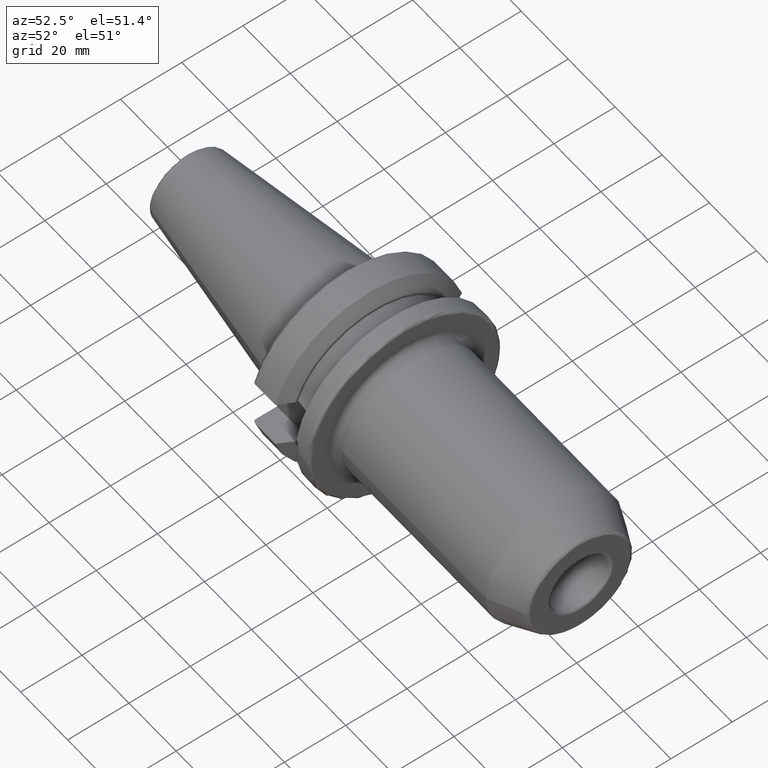
[diagram: clean part render]
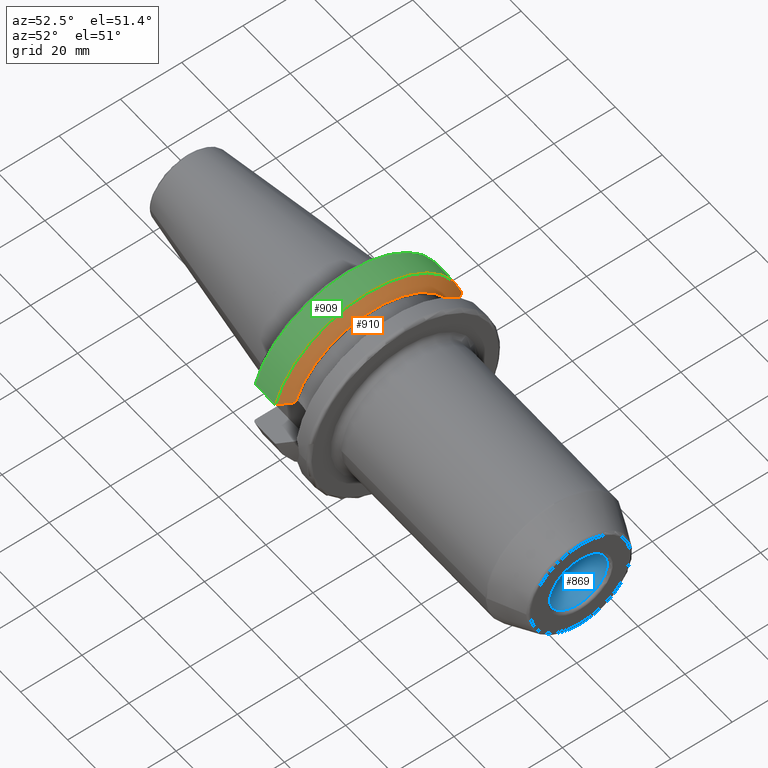
[diagram: same view with three faces highlighted in distinct colors, each labeled with its STEP entity id]
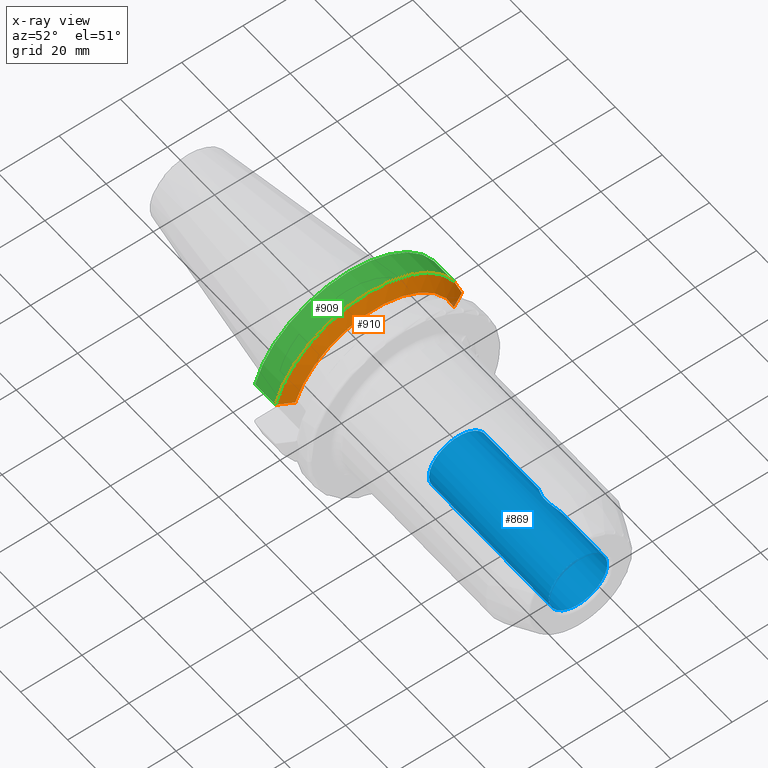
[diagram: x-ray of the same camera — body ghosted, the three highlighted faces saturated]
A machine part, auxiliary view with three faces highlighted in distinct colors.
The next image is the same camera in x-ray (body ghosted, the three faces saturated) — at least one of them is partly hidden behind the body in this view.
Their STEP definitions:

[orange] entity #910 — the highlighted conical surface has half-angle 60.125 deg.
#15=(
BOUNDED_CURVE()
B_SPLINE_CURVE(2,(#1571,#1572,#1573),.UNSPECIFIED.,.F.,.F.)
B_SPLINE_CURVE_WITH_KNOTS((3,3),(0.,0.52358279083281),.UNSPECIFIED.)
CURVE()
GEOMETRIC_REPRESENTATION_ITEM()
RATIONAL_B_SPLINE_CURVE((1.,1.00307360097546,1.))
REPRESENTATION_ITEM('')
);
#18=(
BOUNDED_CURVE()
B_SPLINE_CURVE(2,(#1731,#1732,#1733),.UNSPECIFIED.,.F.,.F.)
B_SPLINE_CURVE_WITH_KNOTS((3,3),(0.,0.52358279083281),.UNSPECIFIED.)
CURVE()
GEOMETRIC_REPRESENTATION_ITEM()
RATIONAL_B_SPLINE_CURVE((1.,1.00307360097546,1.))
REPRESENTATION_ITEM('')
);
#27=CONICAL_SURFACE('',#1041,29.2970358274569,1.0493792127616);
#227=FACE_OUTER_BOUND('',#289,.T.);
#289=EDGE_LOOP('',(#812,#813,#814,#815));
#355=CIRCLE('',#1040,31.5000000000001);
#356=CIRCLE('',#1042,27.0940716549138);
#406=VERTEX_POINT('',#1568);
#407=VERTEX_POINT('',#1570);
#438=VERTEX_POINT('',#1728);
#439=VERTEX_POINT('',#1730);
#508=EDGE_CURVE('',#407,#406,#15,.T.);
#553=EDGE_CURVE('',#439,#438,#18,.T.);
#574=EDGE_CURVE('',#438,#407,#355,.T.);
#575=EDGE_CURVE('',#439,#406,#356,.T.);
#812=ORIENTED_EDGE('',*,*,#508,.T.);
#813=ORIENTED_EDGE('',*,*,#575,.F.);
#814=ORIENTED_EDGE('',*,*,#553,.T.);
#815=ORIENTED_EDGE('',*,*,#574,.T.);
#910=ADVANCED_FACE('',(#227),#27,.T.);
#1040=AXIS2_PLACEMENT_3D('',#1774,#1300,#1301);
#1041=AXIS2_PLACEMENT_3D('',#1775,#1302,#1303);
#1042=AXIS2_PLACEMENT_3D('',#1776,#1304,#1305);
#1300=DIRECTION('center_axis',(1.,0.,0.));
#1301=DIRECTION('ref_axis',(0.,0.,-1.));
#1302=DIRECTION('center_axis',(-1.,0.,0.));
#1303=DIRECTION('ref_axis',(0.,1.,0.));
#1304=DIRECTION('center_axis',(1.,0.,0.));
#1305=DIRECTION('ref_axis',(0.,0.,-1.));
#1568=CARTESIAN_POINT('',(14.1,-25.8705666509569,8.05));
#1570=CARTESIAN_POINT('',(11.5690363073382,-30.4540227227866,8.05));
#1571=CARTESIAN_POINT('Ctrl Pts',(11.5690363073382,-30.4540227227866,8.05));
#1572=CARTESIAN_POINT('Ctrl Pts',(12.9374976962938,-27.989970265181,8.05));
#1573=CARTESIAN_POINT('Ctrl Pts',(14.1,-25.8705666509569,8.05));
#1728=CARTESIAN_POINT('',(11.5690363073382,30.4540227227866,8.05));
#1730=CARTESIAN_POINT('',(14.1,25.8705666509569,8.05));
#1731=CARTESIAN_POINT('Ctrl Pts',(14.1,25.8705666509569,8.05));
#1732=CARTESIAN_POINT('Ctrl Pts',(12.9374976962938,27.989970265181,8.05));
#1733=CARTESIAN_POINT('Ctrl Pts',(11.5690363073382,30.4540227227866,8.05));
#1774=CARTESIAN_POINT('Origin',(11.5690363073382,0.,0.));
#1775=CARTESIAN_POINT('Origin',(12.8345181536691,0.,0.));
#1776=CARTESIAN_POINT('Origin',(14.1,0.,0.));

[blue] entity #869 — the highlighted cylindrical surface (bore or boss wall) has radius 9.525 mm, axis along (1, 0, 0).
#29=B_SPLINE_CURVE_WITH_KNOTS('',3,(#1367,#1368,#1369,#1370,#1371,#1372,
#1373,#1374,#1375,#1376,#1377,#1378),.UNSPECIFIED.,.F.,.F.,(4,2,2,2,2,4),
(0.,0.144698250998677,0.289396501997354,0.578793003994707,0.861943035234952,
1.1450930664752),.UNSPECIFIED.);
#30=B_SPLINE_CURVE_WITH_KNOTS('',3,(#1379,#1380,#1381,#1382,#1383,#1384,
#1385,#1386,#1387,#1388,#1389,#1390,#1391,#1392,#1393,#1394,#1395,#1396,
#1397,#1398,#1399,#1400,#1401,#1402,#1403,#1404,#1405,#1406,#1407,#1408,
#1409,#1410),.UNSPECIFIED.,.F.,.F.,(4,2,2,2,2,2,2,2,2,2,2,2,2,2,2,4),(1.1450930664752,
1.42824309771544,1.71139312895569,2.00078963095304,2.14548788195172,2.29018613295039,
2.43488438394907,2.57958263494775,2.8689791369451,3.15212916818535,3.43527919942559,
3.71842923066584,4.00157926190608,4.29097576390344,4.43567401490211,4.58037226590079),
 .UNSPECIFIED.);
#48=LINE('',#1363,#94);
#94=VECTOR('',#1081,9.52500000000001);
#140=CYLINDRICAL_SURFACE('',#951,9.52500000000001);
#157=FACE_BOUND('',#242,.T.);
#186=FACE_OUTER_BOUND('',#241,.T.);
#241=EDGE_LOOP('',(#596,#597,#598,#599,#600));
#242=EDGE_LOOP('',(#601,#602));
#302=CIRCLE('',#945,9.52500000000001);
#303=CIRCLE('',#946,9.52500000000001);
#307=CIRCLE('',#952,9.52500000000001);
#367=VERTEX_POINT('',#1351);
#368=VERTEX_POINT('',#1352);
#371=VERTEX_POINT('',#1362);
#372=VERTEX_POINT('',#1365);
#373=VERTEX_POINT('',#1366);
#455=EDGE_CURVE('',#367,#368,#302,.T.);
#456=EDGE_CURVE('',#368,#367,#303,.T.);
#460=EDGE_CURVE('',#368,#371,#48,.T.);
#461=EDGE_CURVE('',#371,#371,#307,.T.);
#462=EDGE_CURVE('',#372,#373,#29,.T.);
#463=EDGE_CURVE('',#373,#372,#30,.T.);
#596=ORIENTED_EDGE('',*,*,#455,.F.);
#597=ORIENTED_EDGE('',*,*,#456,.F.);
#598=ORIENTED_EDGE('',*,*,#460,.T.);
#599=ORIENTED_EDGE('',*,*,#461,.F.);
#600=ORIENTED_EDGE('',*,*,#460,.F.);
#601=ORIENTED_EDGE('',*,*,#462,.T.);
#602=ORIENTED_EDGE('',*,*,#463,.T.);
#869=ADVANCED_FACE('',(#186,#157),#140,.F.);
#945=AXIS2_PLACEMENT_3D('',#1353,#1067,#1068);
#946=AXIS2_PLACEMENT_3D('',#1354,#1069,#1070);
#951=AXIS2_PLACEMENT_3D('',#1361,#1079,#1080);
#952=AXIS2_PLACEMENT_3D('',#1364,#1082,#1083);
#1067=DIRECTION('center_axis',(-1.,0.,0.));
#1068=DIRECTION('ref_axis',(0.,-1.,1.83697019872103E-16));
#1069=DIRECTION('center_axis',(-1.,0.,0.));
#1070=DIRECTION('ref_axis',(0.,-1.,1.83697019872103E-16));
#1079=DIRECTION('center_axis',(1.,0.,0.));
#1080=DIRECTION('ref_axis',(0.,1.,0.));
#1081=DIRECTION('',(-1.,0.,0.));
#1082=DIRECTION('center_axis',(1.,0.,0.));
#1083=DIRECTION('ref_axis',(0.,0.,-1.));
#1351=CARTESIAN_POINT('',(100.6,-1.16647607618786E-15,9.52500000000001));
#1352=CARTESIAN_POINT('',(100.6,-9.52500000000001,-1.16647607618786E-15));
#1353=CARTESIAN_POINT('Origin',(100.6,0.,0.));
#1354=CARTESIAN_POINT('Origin',(100.6,0.,0.));
#1361=CARTESIAN_POINT('Origin',(75.6,0.,0.));
#1362=CARTESIAN_POINT('',(49.6,-9.52500000000001,-1.16647607618786E-15));
#1363=CARTESIAN_POINT('',(75.6,-9.52500000000001,-1.16647607618786E-15));
#1364=CARTESIAN_POINT('Origin',(49.6,0.,0.));
#1365=CARTESIAN_POINT('',(78.5,6.26401027697116,7.1755));
#1366=CARTESIAN_POINT('',(85.6755,9.52500000000001,-1.61816899207803E-16));
#1367=CARTESIAN_POINT('Ctrl Pts',(78.5,6.26401027697116,7.1755));
#1368=CARTESIAN_POINT('Ctrl Pts',(78.9823275033289,6.26401027697116,7.1755));
#1369=CARTESIAN_POINT('Ctrl Pts',(79.4661182135581,6.32143007161543,7.12639516897825));
#1370=CARTESIAN_POINT('Ctrl Pts',(80.4080798225057,6.53206413620661,6.93383906269396));
#1371=CARTESIAN_POINT('Ctrl Pts',(80.8664838378561,6.68433612256237,6.79049865656369));
#1372=CARTESIAN_POINT('Ctrl Pts',(82.1716722290303,7.21720628066743,6.23698013972661));
#1373=CARTESIAN_POINT('Ctrl Pts',(82.9506653156914,7.66888180360499,5.69702410111673));
#1374=CARTESIAN_POINT('Ctrl Pts',(84.1835731028284,8.44490043623811,4.46411631397973));
#1375=CARTESIAN_POINT('Ctrl Pts',(84.731535212332,8.83197757623816,3.68359990675616));
#1376=CARTESIAN_POINT('Ctrl Pts',(85.4783700807261,9.37387029886957,1.92439466781673));
#1377=CARTESIAN_POINT('Ctrl Pts',(85.6755,9.52500000000001,0.943833437467483));
#1378=CARTESIAN_POINT('Ctrl Pts',(85.6755,9.52500000000001,-1.38777878078145E-16));
#1379=CARTESIAN_POINT('Ctrl Pts',(85.6755,9.52500000000001,2.77555756156289E-16));
#1380=CARTESIAN_POINT('Ctrl Pts',(85.6755,9.52500000000001,-0.943833437467483));
#1381=CARTESIAN_POINT('Ctrl Pts',(85.4783700807261,9.37387029886957,-1.92439466781673));
#1382=CARTESIAN_POINT('Ctrl Pts',(84.731535212332,8.83197757623817,-3.68359990675616));
#1383=CARTESIAN_POINT('Ctrl Pts',(84.1835731028284,8.44490043623811,-4.46411631397973));
#1384=CARTESIAN_POINT('Ctrl Pts',(82.9506653156914,7.66888180360499,-5.69702410111673));
#1385=CARTESIAN_POINT('Ctrl Pts',(82.1716722290303,7.21720628066743,-6.2369801397266));
#1386=CARTESIAN_POINT('Ctrl Pts',(80.8664838378561,6.68433612256238,-6.79049865656369));
#1387=CARTESIAN_POINT('Ctrl Pts',(80.4080798225056,6.5320641362066,-6.93383906269396));
#1388=CARTESIAN_POINT('Ctrl Pts',(79.4661182135581,6.32143007161543,-7.12639516897826));
#1389=CARTESIAN_POINT('Ctrl Pts',(78.9823275033289,6.26401027697116,-7.1755));
#1390=CARTESIAN_POINT('Ctrl Pts',(78.0176724966711,6.26401027697116,-7.1755));
#1391=CARTESIAN_POINT('Ctrl Pts',(77.5338817864419,6.32143007161542,-7.12639516897826));
#1392=CARTESIAN_POINT('Ctrl Pts',(76.5919201774943,6.53206413620661,-6.93383906269396));
#1393=CARTESIAN_POINT('Ctrl Pts',(76.1335161621439,6.68433612256237,-6.79049865656369));
#1394=CARTESIAN_POINT('Ctrl Pts',(74.8283277709697,7.21720628066742,-6.23698013972661));
#1395=CARTESIAN_POINT('Ctrl Pts',(74.0493346843086,7.66888180360499,-5.69702410111673));
#1396=CARTESIAN_POINT('Ctrl Pts',(72.8164268971716,8.44490043623811,-4.46411631397973));
#1397=CARTESIAN_POINT('Ctrl Pts',(72.268464787668,8.83197757623816,-3.68359990675617));
#1398=CARTESIAN_POINT('Ctrl Pts',(71.5216299192739,9.37387029886957,-1.92439466781674));
#1399=CARTESIAN_POINT('Ctrl Pts',(71.3245,9.52500000000001,-0.943833437467485));
#1400=CARTESIAN_POINT('Ctrl Pts',(71.3245,9.52500000000001,0.943833437467482));
#1401=CARTESIAN_POINT('Ctrl Pts',(71.5216299192739,9.37387029886957,1.92439466781674));
#1402=CARTESIAN_POINT('Ctrl Pts',(72.2684647876679,8.83197757623817,3.68359990675616));
#1403=CARTESIAN_POINT('Ctrl Pts',(72.8164268971716,8.44490043623812,4.46411631397973));
#1404=CARTESIAN_POINT('Ctrl Pts',(74.0493346843086,7.66888180360499,5.69702410111673));
#1405=CARTESIAN_POINT('Ctrl Pts',(74.8283277709697,7.21720628066743,6.2369801397266));
#1406=CARTESIAN_POINT('Ctrl Pts',(76.1335161621439,6.68433612256238,6.79049865656368));
#1407=CARTESIAN_POINT('Ctrl Pts',(76.5919201774943,6.53206413620661,6.93383906269396));
#1408=CARTESIAN_POINT('Ctrl Pts',(77.5338817864419,6.32143007161543,7.12639516897826));
#1409=CARTESIAN_POINT('Ctrl Pts',(78.0176724966711,6.26401027697116,7.1755));
#1410=CARTESIAN_POINT('Ctrl Pts',(78.5,6.26401027697116,7.1755));

[green] entity #909 — the highlighted cylindrical surface (partial cylindrical patch) has radius 31.5 mm, axis along (1, 0, 0).
#63=LINE('',#1575,#109);
#83=LINE('',#1729,#129);
#109=VECTOR('',#1176,10.);
#129=VECTOR('',#1244,10.);
#152=CYLINDRICAL_SURFACE('',#1039,31.5);
#226=FACE_OUTER_BOUND('',#288,.T.);
#288=EDGE_LOOP('',(#808,#809,#810,#811));
#354=CIRCLE('',#1038,31.5);
#355=CIRCLE('',#1040,31.5000000000001);
#407=VERTEX_POINT('',#1570);
#408=VERTEX_POINT('',#1574);
#437=VERTEX_POINT('',#1717);
#438=VERTEX_POINT('',#1728);
#509=EDGE_CURVE('',#408,#407,#63,.T.);
#552=EDGE_CURVE('',#438,#437,#83,.T.);
#573=EDGE_CURVE('',#437,#408,#354,.T.);
#574=EDGE_CURVE('',#438,#407,#355,.T.);
#808=ORIENTED_EDGE('',*,*,#509,.T.);
#809=ORIENTED_EDGE('',*,*,#574,.F.);
#810=ORIENTED_EDGE('',*,*,#552,.T.);
#811=ORIENTED_EDGE('',*,*,#573,.T.);
#909=ADVANCED_FACE('',(#226),#152,.T.);
#1038=AXIS2_PLACEMENT_3D('',#1772,#1296,#1297);
#1039=AXIS2_PLACEMENT_3D('',#1773,#1298,#1299);
#1040=AXIS2_PLACEMENT_3D('',#1774,#1300,#1301);
#1176=DIRECTION('',(1.,0.,0.));
#1244=DIRECTION('',(-1.,0.,0.));
#1296=DIRECTION('center_axis',(1.,0.,0.));
#1297=DIRECTION('ref_axis',(0.,0.,-1.));
#1298=DIRECTION('center_axis',(1.,0.,0.));
#1299=DIRECTION('ref_axis',(0.,1.,0.));
#1300=DIRECTION('center_axis',(1.,0.,0.));
#1301=DIRECTION('ref_axis',(0.,0.,-1.));
#1570=CARTESIAN_POINT('',(11.5690363073382,-30.4540227227866,8.05));
#1574=CARTESIAN_POINT('',(2.99999999999999,-30.4540227227866,8.05));
#1575=CARTESIAN_POINT('',(7.28451815366907,-30.4540227227866,8.05));
#1717=CARTESIAN_POINT('',(2.99999999999999,30.4540227227866,8.05));
#1728=CARTESIAN_POINT('',(11.5690363073382,30.4540227227866,8.05));
#1729=CARTESIAN_POINT('',(7.28451815366907,30.4540227227866,8.05));
#1772=CARTESIAN_POINT('Origin',(2.99999999999999,0.,0.));
#1773=CARTESIAN_POINT('Origin',(7.28451815366907,0.,0.));
#1774=CARTESIAN_POINT('Origin',(11.5690363073382,0.,0.));